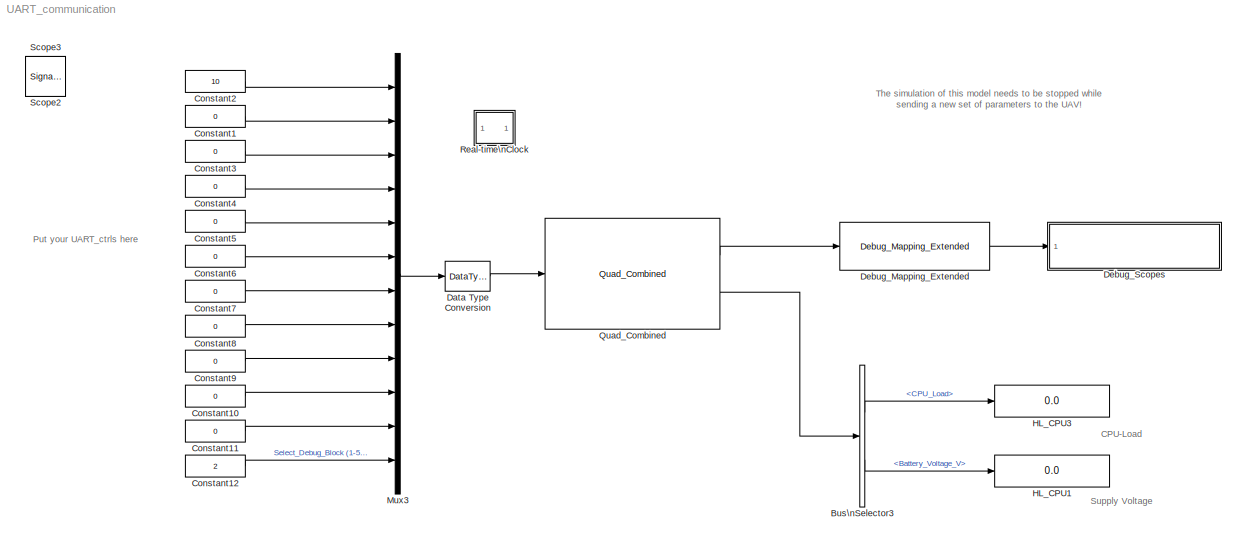
MODEL UART_communication
KIND model
CONFIG InitFcn = %cd('..\\Uart_Com');
CONFIG PreLoadFcn = addpath([cd filesep 'QuadCom']);
BLOCK [BusSelector] Bus\nSelector3
  OutputSignals = CPU_Load,Battery_Voltage_V
  Ports = [1, 2]
  SID = 7888
BLOCK [Constant] Constant1
  OutDataTypeStr = fixdt(1,16,10)
  SID = 7874
  SampleTime = 0.02
  Value = 0
  VectorParams1D = off
BLOCK [Constant] Constant10
  OutDataTypeStr = fixdt(1,16,10)
  SID = 7882
  SampleTime = 0.02
  Value = 0
  VectorParams1D = off
BLOCK [Constant] Constant11
  OutDataTypeStr = fixdt(1,16,10)
  SID = 7884
  SampleTime = 0.02
  Value = 0
  VectorParams1D = off
BLOCK [Constant] Constant12
  OutDataTypeStr = fixdt(1,16,10)
  SID = 7885
  SampleTime = 0.02
  Value = 2
  VectorParams1D = off
BLOCK [Constant] Constant2
  OutDataTypeStr = fixdt(1,16,10)
  SID = 7870
  SampleTime = 0.02
  Value = 10
  VectorParams1D = off
BLOCK [Constant] Constant3
  OutDataTypeStr = fixdt(1,16,10)
  SID = 7875
  SampleTime = 0.02
  Value = 0
  VectorParams1D = off
BLOCK [Constant] Constant4
  OutDataTypeStr = fixdt(1,16,10)
  SID = 7876
  SampleTime = 0.02
  Value = 0
  VectorParams1D = off
BLOCK [Constant] Constant5
  OutDataTypeStr = fixdt(1,16,10)
  SID = 7877
  SampleTime = 0.02
  Value = 0
  VectorParams1D = off
BLOCK [Constant] Constant6
  OutDataTypeStr = fixdt(1,16,10)
  SID = 7878
  SampleTime = 0.02
  Value = 0
  VectorParams1D = off
BLOCK [Constant] Constant7
  OutDataTypeStr = fixdt(1,16,10)
  SID = 7879
  SampleTime = 0.02
  Value = 0
  VectorParams1D = off
BLOCK [Constant] Constant8
  OutDataTypeStr = fixdt(1,16,10)
  SID = 7880
  SampleTime = 0.02
  Value = 0
  VectorParams1D = off
BLOCK [Constant] Constant9
  OutDataTypeStr = fixdt(1,16,10)
  SID = 7881
  SampleTime = 0.02
  Value = 0
  VectorParams1D = off
BLOCK [DataTypeConversion] Data Type Conversion
  ConvertRealWorld = Stored Integer (SI)
  OutDataTypeStr = int16
  RndMeth = Floor
  SID = 7868
  SaturateOnIntegerOverflow = off
BLOCK [Reference] Debug_Mapping_Extended  REF=LIB_Quad_Com/Debug_Mapping_Extended
  Ports = [1, 1]
  SID = 7807
  SourceBlock = LIB_Quad_Com/Debug_Mapping_Extended
  SourceType = SubSystem
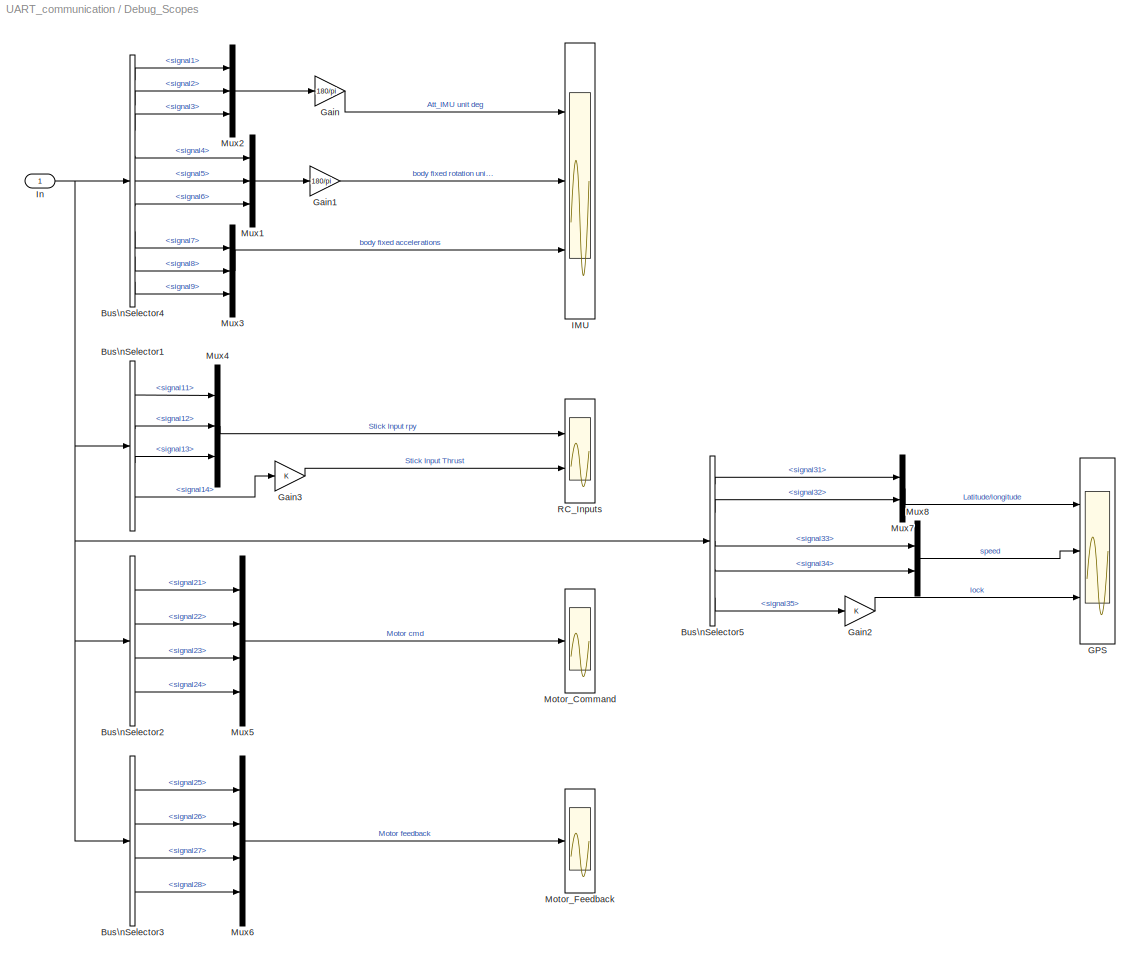
BLOCK [SubSystem] Debug_Scopes
  FunctionWithSeparateData = off
  MaskHideContents = off
  MinAlgLoopOccurrences = off
  Opaque = off
  Ports = [1]
  PropExecContextOutsideSubsystem = off
  RTWSystemCode = Auto
  RequestExecContextInheritance = off
  SID = 7893
BLOCK [BusSelector] Debug_Scopes/Bus\nSelector1
  OutputSignals = signal11,signal12,signal13,signal14
  Ports = [1, 4]
  SID = 7895
BLOCK [BusSelector] Debug_Scopes/Bus\nSelector2
  OutputSignals = signal21,signal22,signal23,signal24
  Ports = [1, 4]
  SID = 7896
BLOCK [BusSelector] Debug_Scopes/Bus\nSelector3
  OutputSignals = signal25,signal26,signal27,signal28
  Ports = [1, 4]
  SID = 7910
BLOCK [BusSelector] Debug_Scopes/Bus\nSelector4
  OutputSignals = signal1,signal2,signal3,signal4,signal5,signal6,signal7,signal8,signal9
  Ports = [1, 9]
  SID = 7897
BLOCK [BusSelector] Debug_Scopes/Bus\nSelector5
  OutputSignals = signal31,signal32,signal33,signal34,signal35
  Ports = [1, 5]
  SID = 7913
BLOCK [Scope] Debug_Scopes/GPS
  DataFormat = StructureWithTime
  Floating = off
  NumInputPorts = 3
  Ports = [3]
  SID = 7915
  SampleTime = 0
  SaveName = ScopeData1
  TimeRange = 10
  YMax = 50~0.5~1
  YMin = 10~-1.2~-1
  ZoomMode = xonly
BLOCK [Gain] Debug_Scopes/Gain
  Gain = 180/pi
  OutDataTypeStr = Inherit: Inherit via internal rule
  ParamDataTypeStr = Inherit: Inherit via internal rule
  SID = 7898
  SaturateOnIntegerOverflow = off
BLOCK [Gain] Debug_Scopes/Gain1
  Gain = 180/pi
  OutDataTypeStr = Inherit: Inherit via internal rule
  ParamDataTypeStr = Inherit: Inherit via internal rule
  SID = 7899
  SaturateOnIntegerOverflow = off
BLOCK [Gain] Debug_Scopes/Gain2
  OutDataTypeStr = Inherit: Inherit via internal rule
  ParamDataTypeStr = Inherit: Inherit via internal rule
  SID = 7917
  SaturateOnIntegerOverflow = off
BLOCK [Gain] Debug_Scopes/Gain3
  OutDataTypeStr = Inherit: Inherit via internal rule
  ParamDataTypeStr = Inherit: Inherit via internal rule
  SID = 7901
  SaturateOnIntegerOverflow = off
BLOCK [Scope] Debug_Scopes/IMU
  DataFormat = StructureWithTime
  Floating = off
  NumInputPorts = 3
  Ports = [3]
  SID = 7907
  SampleTime = 0
  SaveName = ScopeData2
  TimeRange = 3
  YMax = 20~1.5~1
  YMin = -2.5~-1.25~-10
  ZoomMode = xonly
BLOCK [Inport] Debug_Scopes/In
  IconDisplay = Port number
  SID = 7894
BLOCK [Scope] Debug_Scopes/Motor_Command
  DataFormat = StructureWithTime
  Floating = off
  NumInputPorts = 1
  Ports = [1]
  SID = 7909
  SampleTime = 0
  SaveName = ScopeData4
  TimeRange = 30
  YMax = 1
  YMin = 0
  ZoomMode = xonly
BLOCK [Scope] Debug_Scopes/Motor_Feedback
  DataFormat = StructureWithTime
  Floating = off
  NumInputPorts = 1
  Ports = [1]
  SID = 7912
  SampleTime = 0
  TimeRange = 30
  YMax = 0.3
  YMin = 0
BLOCK [Mux] Debug_Scopes/Mux1
  DisplayOption = bar
  Inputs = 3
  Ports = [3, 1]
  SID = 7902
BLOCK [Mux] Debug_Scopes/Mux2
  DisplayOption = bar
  Inputs = 3
  Ports = [3, 1]
  SID = 7903
BLOCK [Mux] Debug_Scopes/Mux3
  DisplayOption = bar
  Inputs = 3
  Ports = [3, 1]
  SID = 7904
BLOCK [Mux] Debug_Scopes/Mux4
  DisplayOption = bar
  Inputs = 3
  Ports = [3, 1]
  SID = 7905
BLOCK [Mux] Debug_Scopes/Mux5
  DisplayOption = bar
  Ports = [4, 1]
  SID = 7906
BLOCK [Mux] Debug_Scopes/Mux6
  DisplayOption = bar
  Ports = [4, 1]
  SID = 7911
BLOCK [Mux] Debug_Scopes/Mux7
  DisplayOption = bar
  Inputs = 2
  Ports = [2, 1]
  SID = 7914
BLOCK [Mux] Debug_Scopes/Mux8
  DisplayOption = bar
  Inputs = 2
  Ports = [2, 1]
  SID = 7916
BLOCK [Scope] Debug_Scopes/RC_Inputs
  DataFormat = StructureWithTime
  Floating = off
  NumInputPorts = 2
  Ports = [2]
  SID = 7908
  SampleTime = 0
  SaveName = ScopeData3
  TimeRange = 30
  YMax = 1~1
  YMin = -1~-1
  ZoomMode = xonly
BLOCK [Display] HL_CPU1
  Lockdown = off
  Ports = [1]
  SID = 7889
BLOCK [Display] HL_CPU3
  Lockdown = off
  Ports = [1]
  SID = 7892
BLOCK [Mux] Mux3
  DisplayOption = bar
  Inputs = 12
  Ports = [12, 1]
  SID = 7869
BLOCK [Reference] Quad_Combined  REF=LIB_Quad_Com/Quad_Combined
  Ports = [1, 2]
  SID = 7806
  SourceBlock = LIB_Quad_Com/Quad_Combined
  baudrate = 57600
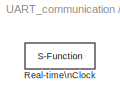
BLOCK [SubSystem] Real-time\nClock
  FunctionWithSeparateData = off
  MaskCallbackString = |
  MaskDescription = Real-time Synchronization Block
  MaskDisplay = plot(0,0,100,100,[40,60,60,54,54,64,69,76,82,77,81,83,83,81,78,74,70,64,57,49,41,35,32,30,30,31,34,40,47,47,40,40],[90,90,85,85,80,79,76,87,80,70,64,57,49,41,33,28,24,22,21,23,25,31,37,46,56,65,73,78,80,85,85,90],[69,53,53],[64,50,73])
  MaskEnableString = on,on
  MaskHelp = This block synchronizes simulation time with the PC real-time clock or UNIX system clock. The first dialog entry is the period at which the clock is checked to insure real-time synchronization. The second dialog entry is the number of seconds that the simulation time must be within real-time before a warning is printed.
  MaskHideContents = off
  MaskIconFrame = on
  MaskIconOpaque = on
  MaskIconRotate = none
  MaskIconUnits = autoscale
  MaskPortRotate = default
  MaskPromptString = Synchronize with real-time every n seconds:|Real-time warning tolerance (seconds):
  MaskStyleString = edit,edit
  MaskToolTipString = on,on
  MaskTunableValueString = on,on
  MaskType = Real-time Clock
  MaskValueString = 0.02|1
  MaskVariables = sample_time=@1;tolerance=@2;
  MaskVisibilityString = on,on
  MinAlgLoopOccurrences = off
  Opaque = off
  Ports = []
  PropExecContextOutsideSubsystem = off
  RTWSystemCode = Auto
  RequestExecContextInheritance = off
  SID = 3030
  ShowPortLabels = none
BLOCK [S-Function] Real-time\nClock/Real-time\nClock
  EnableBusSupport = off
  FunctionName = rtclock
  Parameters = sample_time, tolerance
  Ports = []
  SID = 3031
BLOCK [SignalViewerScope] Scope2
  DataFormat = Array
  IOType = viewer
  MaxDataPoints = 7500
  NumInputPorts = 1
  Ports = []
  RefreshTime = 0.035000
  SID = 566
  SaveName = ScopeData2
  ShowDataMarkers = off
  ShowLegends = off
  YMax = 0.07
  YMin = -0.09
BLOCK [SignalViewerScope] Scope3
  DataFormat = Array
  IOType = viewer
  MaxDataPoints = 7500
  NumInputPorts = 1
  Ports = []
  RefreshTime = 0.035000
  SID = 567
  SaveName = ScopeData3
  ShowDataMarkers = off
  ShowLegends = off
  YMax = 2.75
  YMin = -1.25
ANNOTATION (root): CPU-Load\n\n\n\n\nSupply Voltage
ANNOTATION (root): Put your UART_ctrls here
ANNOTATION (root): The simulation of this model needs to be stopped while\n sending a new set of parameters to the UAV!
LINE Bus\nSelector3:1 -> HL_CPU3:1
LINE Bus\nSelector3:2 -> HL_CPU1:1
LINE Constant10:1 -> Mux3:10
LINE Constant11:1 -> Mux3:11
LINE Constant12:1 -> Mux3:12
LINE Constant1:1 -> Mux3:2
LINE Constant2:1 -> Mux3:1
LINE Constant3:1 -> Mux3:3
LINE Constant4:1 -> Mux3:4
LINE Constant5:1 -> Mux3:5
LINE Constant6:1 -> Mux3:6
LINE Constant7:1 -> Mux3:7
LINE Constant8:1 -> Mux3:8
LINE Constant9:1 -> Mux3:9
LINE Data Type Conversion:1 -> Quad_Combined:1
LINE Debug_Mapping_Extended:1 -> Debug_Scopes:1
LINE Debug_Scopes/Bus\nSelector1:1 -> Debug_Scopes/Mux4:1
LINE Debug_Scopes/Bus\nSelector1:2 -> Debug_Scopes/Mux4:2
LINE Debug_Scopes/Bus\nSelector1:3 -> Debug_Scopes/Mux4:3
LINE Debug_Scopes/Bus\nSelector1:4 -> Debug_Scopes/Gain3:1
LINE Debug_Scopes/Bus\nSelector2:1 -> Debug_Scopes/Mux5:1
LINE Debug_Scopes/Bus\nSelector2:2 -> Debug_Scopes/Mux5:2
LINE Debug_Scopes/Bus\nSelector2:3 -> Debug_Scopes/Mux5:3
LINE Debug_Scopes/Bus\nSelector2:4 -> Debug_Scopes/Mux5:4
LINE Debug_Scopes/Bus\nSelector3:1 -> Debug_Scopes/Mux6:1
LINE Debug_Scopes/Bus\nSelector3:2 -> Debug_Scopes/Mux6:2
LINE Debug_Scopes/Bus\nSelector3:3 -> Debug_Scopes/Mux6:3
LINE Debug_Scopes/Bus\nSelector3:4 -> Debug_Scopes/Mux6:4
LINE Debug_Scopes/Bus\nSelector4:1 -> Debug_Scopes/Mux2:1
LINE Debug_Scopes/Bus\nSelector4:2 -> Debug_Scopes/Mux2:2
LINE Debug_Scopes/Bus\nSelector4:3 -> Debug_Scopes/Mux2:3
LINE Debug_Scopes/Bus\nSelector4:4 -> Debug_Scopes/Mux1:1
LINE Debug_Scopes/Bus\nSelector4:5 -> Debug_Scopes/Mux1:2
LINE Debug_Scopes/Bus\nSelector4:6 -> Debug_Scopes/Mux1:3
LINE Debug_Scopes/Bus\nSelector4:7 -> Debug_Scopes/Mux3:1
LINE Debug_Scopes/Bus\nSelector4:8 -> Debug_Scopes/Mux3:2
LINE Debug_Scopes/Bus\nSelector4:9 -> Debug_Scopes/Mux3:3
LINE Debug_Scopes/Bus\nSelector5:1 -> Debug_Scopes/Mux7:1
LINE Debug_Scopes/Bus\nSelector5:2 -> Debug_Scopes/Mux7:2
LINE Debug_Scopes/Bus\nSelector5:3 -> Debug_Scopes/Mux8:1
LINE Debug_Scopes/Bus\nSelector5:4 -> Debug_Scopes/Mux8:2
LINE Debug_Scopes/Bus\nSelector5:5 -> Debug_Scopes/Gain2:1
LINE Debug_Scopes/Gain1:1 -> Debug_Scopes/IMU:2
LINE Debug_Scopes/Gain2:1 -> Debug_Scopes/GPS:3
LINE Debug_Scopes/Gain3:1 -> Debug_Scopes/RC_Inputs:2
LINE Debug_Scopes/Gain:1 -> Debug_Scopes/IMU:1
NET Debug_Scopes/In:1 -> Debug_Scopes/Bus\nSelector1:1, Debug_Scopes/Bus\nSelector2:1, Debug_Scopes/Bus\nSelector3:1, Debug_Scopes/Bus\nSelector4:1, Debug_Scopes/Bus\nSelector5:1
LINE Debug_Scopes/Mux1:1 -> Debug_Scopes/Gain1:1
LINE Debug_Scopes/Mux2:1 -> Debug_Scopes/Gain:1
LINE Debug_Scopes/Mux3:1 -> Debug_Scopes/IMU:3
LINE Debug_Scopes/Mux4:1 -> Debug_Scopes/RC_Inputs:1
LINE Debug_Scopes/Mux5:1 -> Debug_Scopes/Motor_Command:1
LINE Debug_Scopes/Mux6:1 -> Debug_Scopes/Motor_Feedback:1
LINE Debug_Scopes/Mux7:1 -> Debug_Scopes/GPS:1
LINE Debug_Scopes/Mux8:1 -> Debug_Scopes/GPS:2
LINE Mux3:1 -> Data Type Conversion:1
LINE Quad_Combined:1 -> Debug_Mapping_Extended:1
LINE Quad_Combined:2 -> Bus\nSelector3:1
note: NET lines group one-source signal fan-out (src -> all destinations, sorted); 1:1 wires keep LINE
